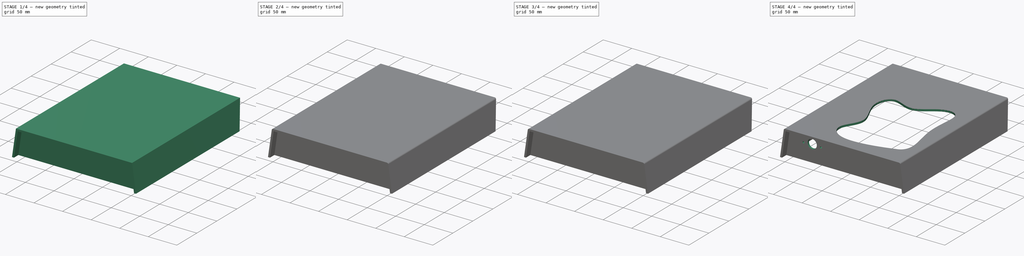
[diagram: build sequence overview — one tinted view per stage of 4, left to right]
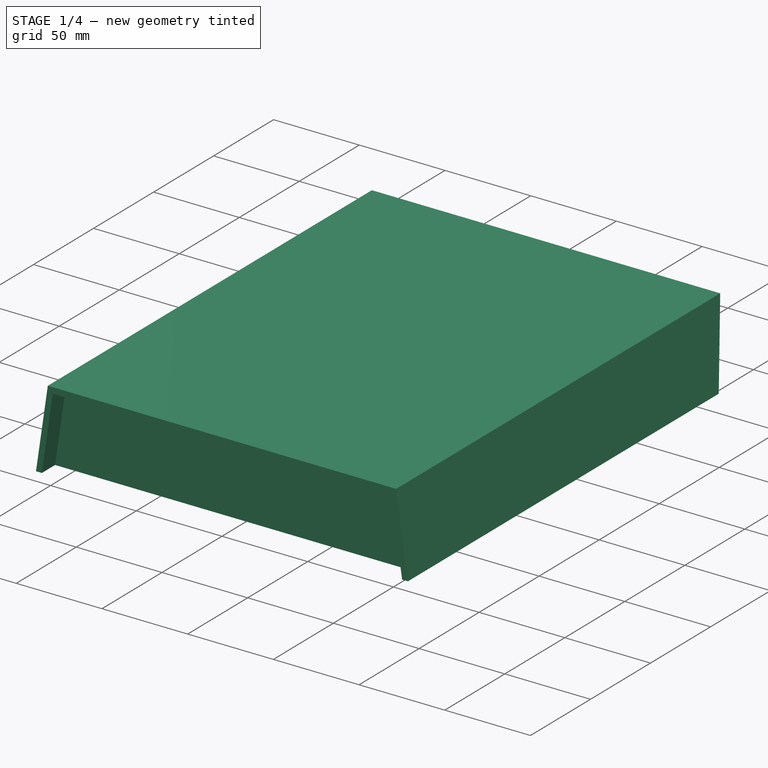
[diagram: stage 1 of 4 — iso view after this stage's code; geometry added in this stage tinted green]
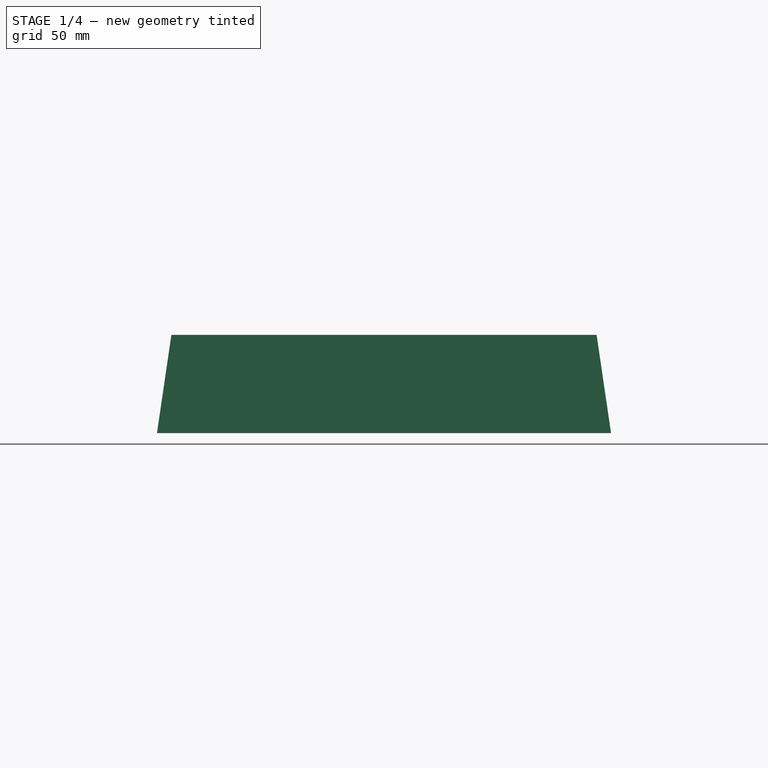
[diagram: stage 1 of 4 — front view after this stage's code; geometry added in this stage tinted green]
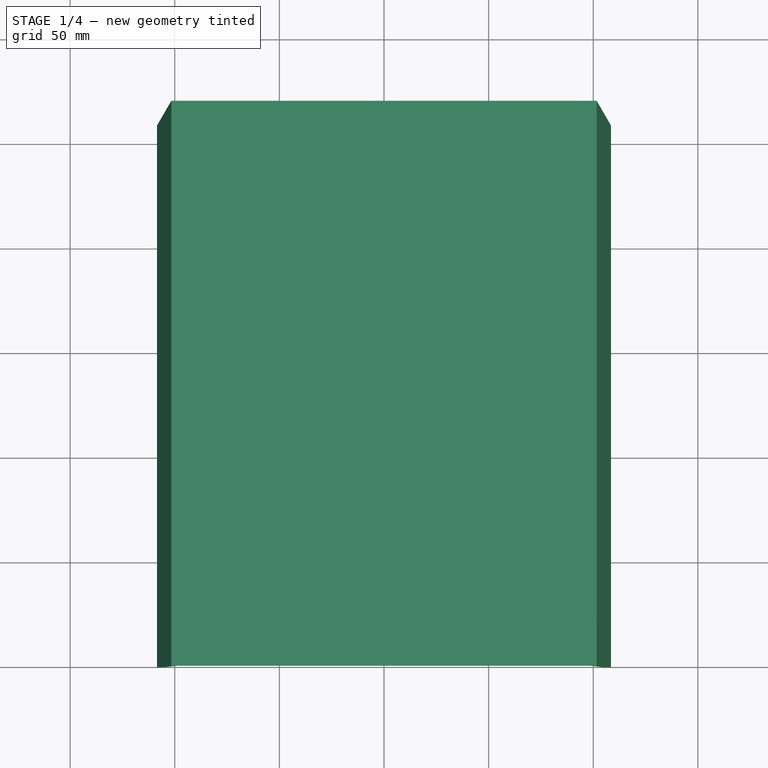
[diagram: stage 1 of 4 — top view after this stage's code; geometry added in this stage tinted green]
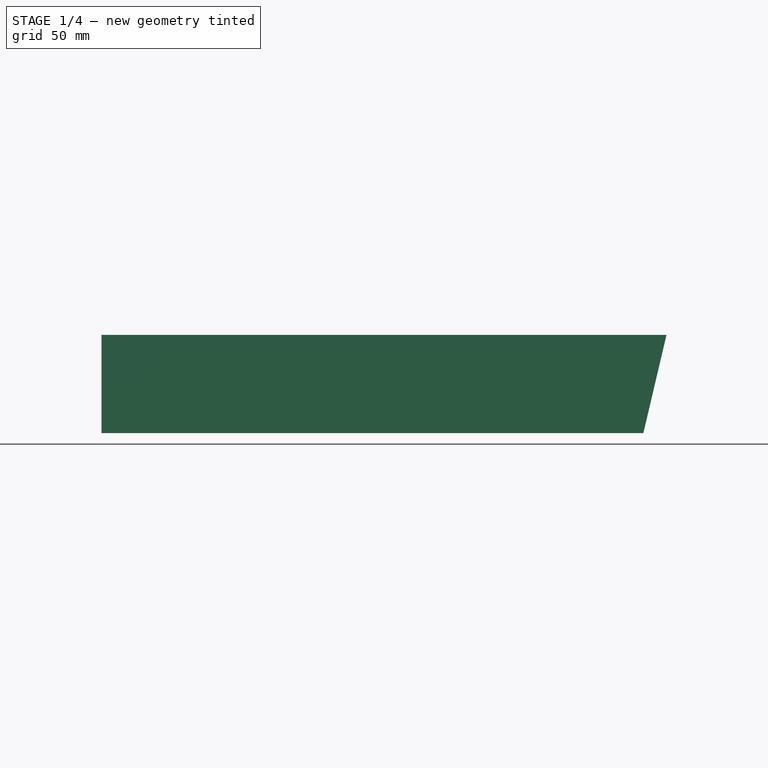
[diagram: stage 1 of 4 — right view after this stage's code; geometry added in this stage tinted green]
FCSTD DOCUMENT  (FreeCAD 0.17R13522 (Git))
Label: Keithley_17X_Instrument_Case_Top
License: All rights reserved
LicenseURL: http://en.wikipedia.org/wiki/All_rights_reserved
objects: Sketcher::SketchObject×10, PartDesign::Pocket×7, PartDesign::Pad×3, PartDesign::Mirrored×2, PartDesign::Plane×1, PartDesign::Fillet×1, PartDesign::LinearPattern×1, PartDesign::Body×1
note: 36 computed .brp shape members not serialized (recipe doc carries the construction recipe); baked Part::Feature solids carry a one-line shape summary decoded from their .brp

FEATURE [Sketcher::SketchObject] Sketch
  MapMode = 5
  Placement = pos=(0,0,0) rot=(1,0,0;1.5708rad)
  Support = -> [XZ_Plane]
  expr: Constraints[10] = 180 - 81.650000000000006
  sketch-geometry (4):
    g0: LineSegment StartX=-108.5 StartY=0 StartZ=0 EndX=108.5 EndY=0 EndZ=0
    g1: LineSegment StartX=108.5 StartY=0 StartZ=0 EndX=101.616 EndY=46.9 EndZ=0
    g2: LineSegment StartX=101.616 StartY=46.9 StartZ=0 EndX=-101.616 EndY=46.9 EndZ=0
    g3: LineSegment StartX=-108.5 StartY=0 StartZ=0 EndX=-101.616 EndY=46.9 EndZ=0
  constraints (12):
    c: PointOnObject(g0,g-1)
    c: Horizontal(g0)
    c: Coincident(g1,g0)
    c: Coincident(g2,g1)
    c: Horizontal(g2)
    c: Coincident(g3,g0)
    c: Coincident(g3,g2)
    c: Symmetric(g0,g0,g-2)
    c: Symmetric(g1,g2,g-2)
    c: DistanceY(g0,g2) = 46.9
    c: Angle(g3,g2) = 1.71653
    c: DistanceX(g0,g0) = 217
FEATURE [PartDesign::Pad] Pad
  Length = 270
  Length2 = 100
  Placement = pos=(0,0,0) rot=(1,0,0;1.5708rad)
  Profile = -> Sketch
  Refine = true
  Reversed = true
  Type = 0
FEATURE [Sketcher::SketchObject] Sketch001
  ExternalGeometry = -> [Pad]
  MapMode = 5
  Placement = pos=(0,0,0) rot=(0.57735,0.57735,0.57735;2.0944rad)
  Support = -> [YZ_Plane]
  sketch-geometry (3):
    g0: LineSegment StartX=270 StartY=46.9 StartZ=0 EndX=258.957 EndY=0 EndZ=0
    g1: LineSegment StartX=258.957 StartY=0 StartZ=0 EndX=270 EndY=0 EndZ=0
    g2: LineSegment StartX=270 StartY=0 StartZ=0 EndX=270 EndY=46.9 EndZ=0
  constraints (7):
    c: Coincident(g0,g-4)
    c: PointOnObject(g0,g-5)
    c: Coincident(g1,g0)
    c: Coincident(g1,g-5)
    c: Coincident(g2,g1)
    c: Coincident(g2,g0)
    c: Angle(g1,g0) = 1.33954
FEATURE [PartDesign::Pocket] Pocket
  BaseFeature = -> Pad
  Length = 5
  Length2 = 100
  Midplane = true
  Placement = pos=(0,0,0) rot=(1,0,0;1.5708rad)
  Profile = -> Sketch001
  Refine = true
  Type = 1
FEATURE [Sketcher::SketchObject] Sketch002
  ExternalGeometry = -> [Pocket]
  MapMode = 5
  Placement = pos=(0,0,0) rot=(1,0,0;1.5708rad)
  Support = -> [Pocket]
  sketch-geometry (7):
    g0: LineSegment StartX=-105.084 StartY=0 StartZ=0 EndX=-98.6961 EndY=43.52 EndZ=0
    g1: LineSegment StartX=-98.6961 StartY=43.52 StartZ=0 EndX=98.6961 EndY=43.52 EndZ=0
    g2: LineSegment StartX=98.6961 StartY=43.52 StartZ=0 EndX=105.084 EndY=0 EndZ=0
    g3: LineSegment [constr] StartX=101.561 StartY=24 StartZ=0 EndX=104.905 EndY=24.4908 EndZ=0
    g4: LineSegment [constr] StartX=-101.561 StartY=24 StartZ=0 EndX=-104.905 EndY=24.4908 EndZ=0
    g5: LineSegment [constr] StartX=-101.561 StartY=24 StartZ=0 EndX=101.561 EndY=24 EndZ=0
    g6: LineSegment StartX=-105.084 StartY=0 StartZ=0 EndX=105.084 EndY=0 EndZ=0
  constraints (22):
    c: PointOnObject(g0,g-1)
    c: Coincident(g1,g0)
    c: Horizontal(g1)
    c: Coincident(g2,g1)
    c: PointOnObject(g2,g-1)
    c: PointOnObject(g3,g2)
    c: PointOnObject(g3,g-5)
    c: PointOnObject(g4,g0)
    c: PointOnObject(g4,g-3)
    c: DistanceY(g1,g-5) = 3.38
    c: Perpendicular(g-5,g3)
    c: Perpendicular(g-3,g4)
    c: Distance(g3) = 3.38
    c: Equal(g3,g4)
    c: Parallel(g2,g-5)
    c: Parallel(g0,g-3)
    c: Coincident(g5,g4)
    c: Coincident(g5,g3)
    c: Horizontal(g5)
    c: DistanceY(g2,g3) = 24
    c: Coincident(g6,g0)
    c: Coincident(g6,g2)
FEATURE [PartDesign::Pocket] Pocket001
  BaseFeature = -> Pocket
  Length = 11
  Length2 = 100
  Placement = pos=(0,0,0) rot=(1,0,0;1.5708rad)
  Profile = -> Sketch002
  Refine = true
  Type = 0
FEATURE [PartDesign::Plane] DatumPlane
  AttachmentOffset = pos=(0,0,-280) rot=(0,0,1;0rad)
  MapMode = 5
  Placement = pos=(0,280,2.9e-11) rot=(1,0,0;1.5708rad)
  Support = -> [XZ_Plane]
FEATURE [Sketcher::SketchObject] Sketch003
  ExternalGeometry = -> [Pocket001]
  MapMode = 5
  Placement = pos=(0,280,2.9e-11) rot=(1,0,0;1.5708rad)
  Support = -> [DatumPlane]
  sketch-geometry (4):
    g0: LineSegment StartX=-105.084 StartY=0 StartZ=0 EndX=-98.6961 EndY=43.52 EndZ=0
    g1: LineSegment StartX=-98.6961 StartY=43.52 StartZ=0 EndX=98.6961 EndY=43.52 EndZ=0
    g2: LineSegment StartX=98.6961 StartY=43.52 StartZ=0 EndX=105.084 EndY=0 EndZ=0
    g3: LineSegment StartX=105.084 StartY=0 StartZ=0 EndX=-105.084 EndY=0 EndZ=0
  constraints (8):
    c: Coincident(g0,g-3)
    c: Coincident(g0,g-4)
    c: Coincident(g1,g0)
    c: Coincident(g1,g-5)
    c: Coincident(g2,g1)
    c: Coincident(g2,g-5)
    c: Coincident(g3,g2)
    c: Coincident(g3,g0)
FEATURE [PartDesign::Pocket] Pocket002
  BaseFeature = -> Pocket001
  Length = 0
  Length2 = 100
  Offset = -3.38
  Placement = pos=(0,0,0) rot=(1,0,0;1.5708rad)
  Profile = -> Sketch003
  Refine = true
  Reversed = true
  Type = 3
  UpToFace = -> Pocket001 [Face4]
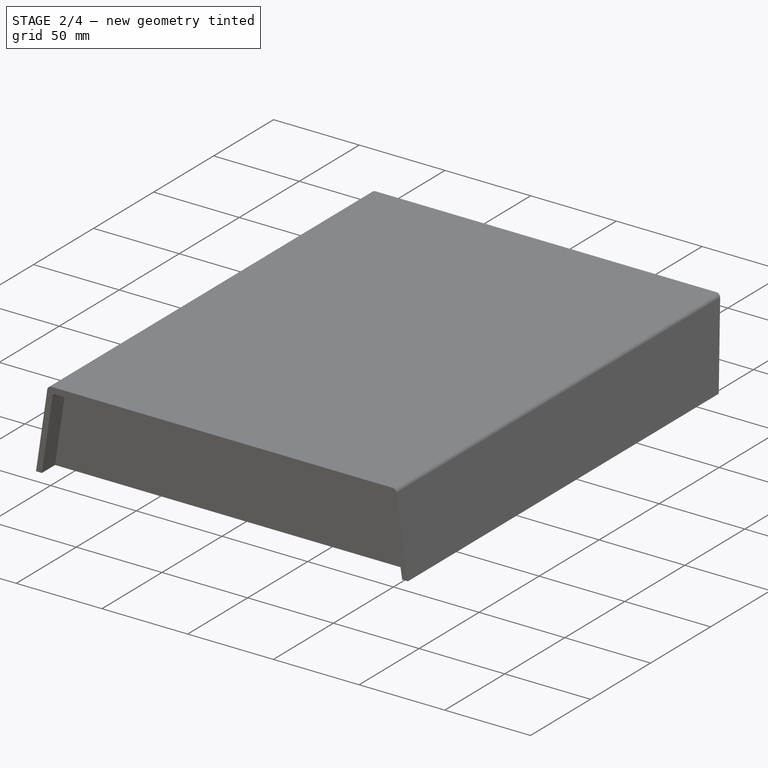
[diagram: stage 2 of 4 — iso view after this stage's code; geometry added in this stage tinted green]
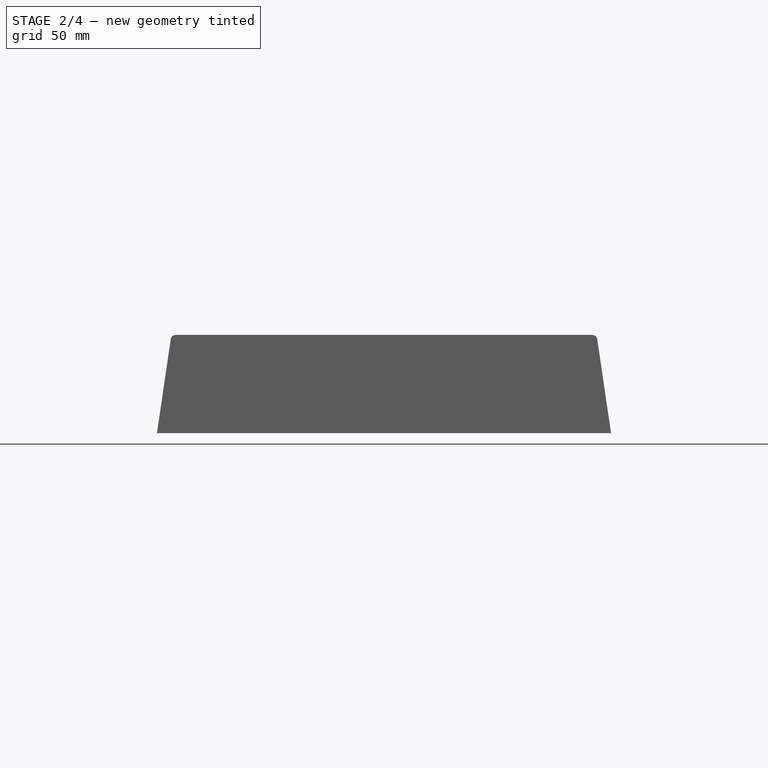
[diagram: stage 2 of 4 — front view after this stage's code; geometry added in this stage tinted green]
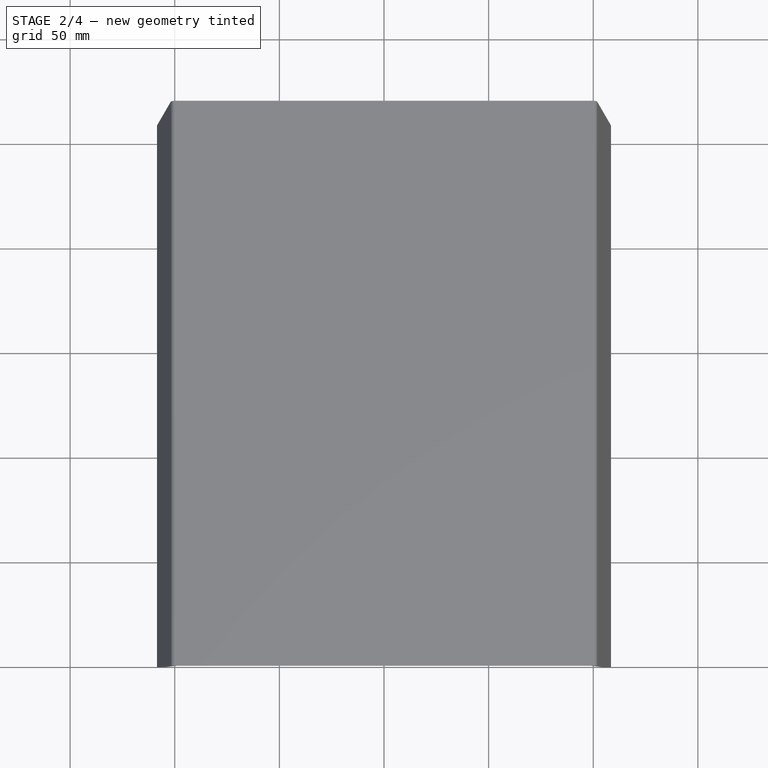
[diagram: stage 2 of 4 — top view after this stage's code; geometry added in this stage tinted green]
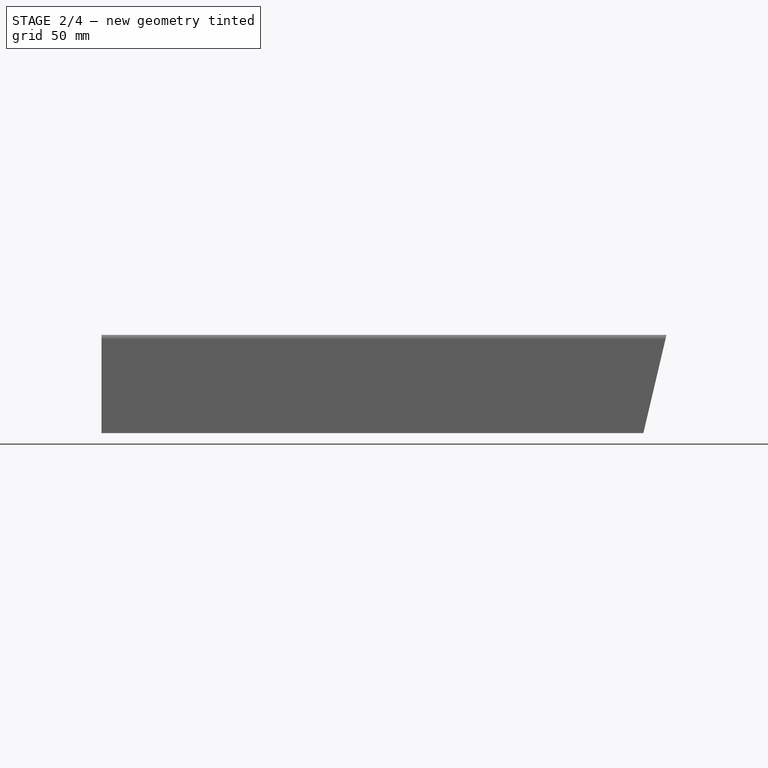
[diagram: stage 2 of 4 — right view after this stage's code; geometry added in this stage tinted green]
FEATURE [PartDesign::Fillet] Fillet
  Base = -> Pocket002 [Edge24,Edge36,Edge20,Edge23,Edge35,Edge32]
  BaseFeature = -> Pocket002
  Placement = pos=(0,0,0) rot=(1,0,0;1.5708rad)
  Radius = 2.38
FEATURE [Sketcher::SketchObject] Sketch004
  ExternalGeometry = -> [Fillet]
  MapMode = 5
  Placement = pos=(0,0,43.52) rot=(1,0,0;3.14159rad)
  Support = -> [Fillet]
  expr: Constraints[0] = 9.6999999999999993 / 2
  sketch-geometry (1):
    g0: Circle CenterX=89.9 CenterY=-82.88 CenterZ=0 NormalX=0 NormalY=0 NormalZ=1 AngleXU=0 Radius=4.85
  constraints (3):
    c: Radius(g0) = 4.85
    c: DistanceY(g0,g-3) = 68.5
    c: DistanceX(g0,g-4) = 18.6
FEATURE [PartDesign::Pad] Pad001
  BaseFeature = -> Fillet
  Length = 32
  Length2 = 100
  Placement = pos=(0,0,0) rot=(1,0,0;1.5708rad)
  Profile = -> Sketch004
  Refine = true
  Type = 0
FEATURE [PartDesign::Mirrored] Mirrored
  BaseFeature = -> Pad001
  MirrorPlane = -> YZ_Plane
  Originals = -> [Pad001]
  Placement = pos=(0,0,0) rot=(1,0,0;1.5708rad)
  Refine = true
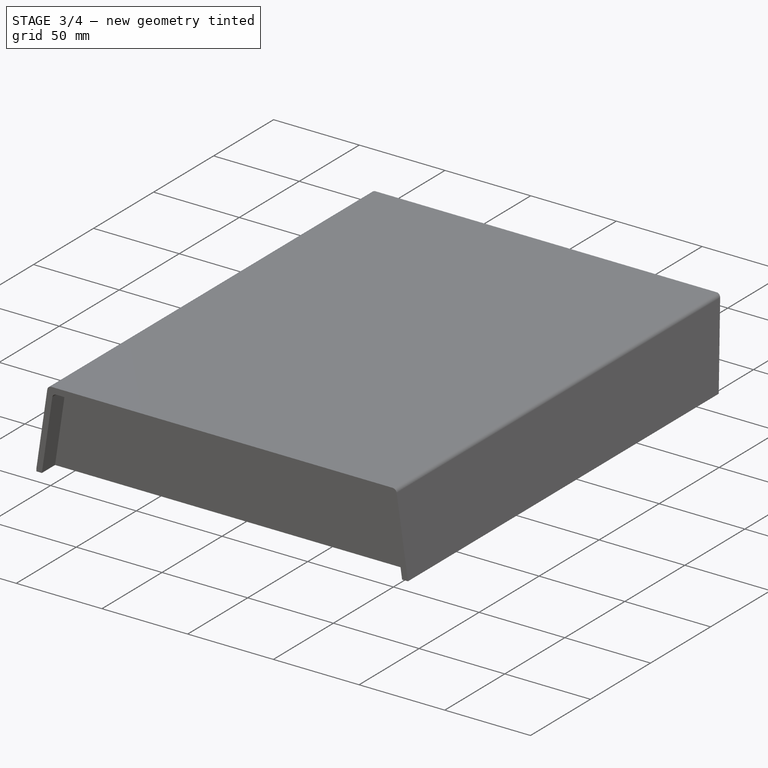
[diagram: stage 3 of 4 — iso view after this stage's code; geometry added in this stage tinted green]
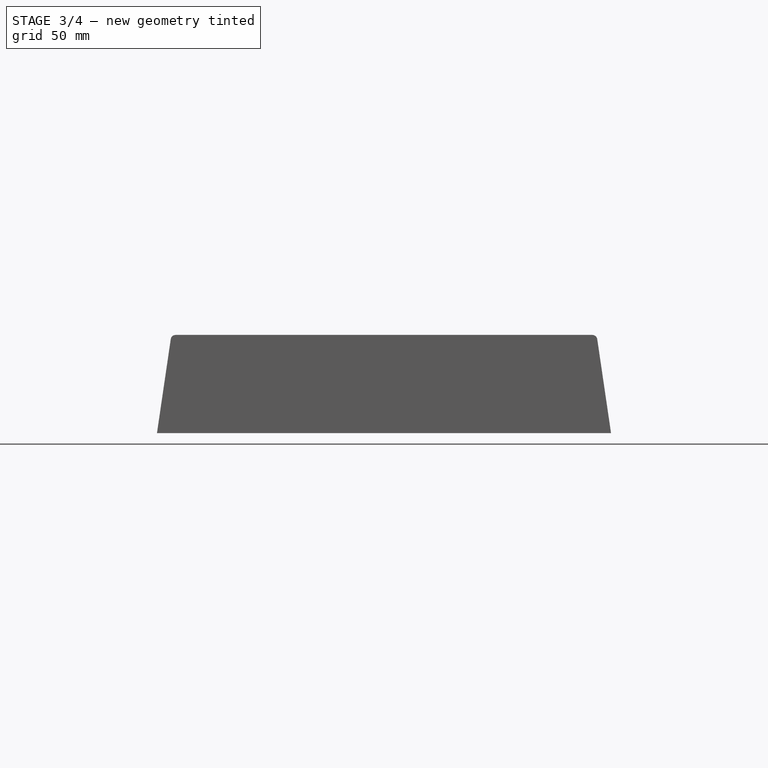
[diagram: stage 3 of 4 — front view after this stage's code; geometry added in this stage tinted green]
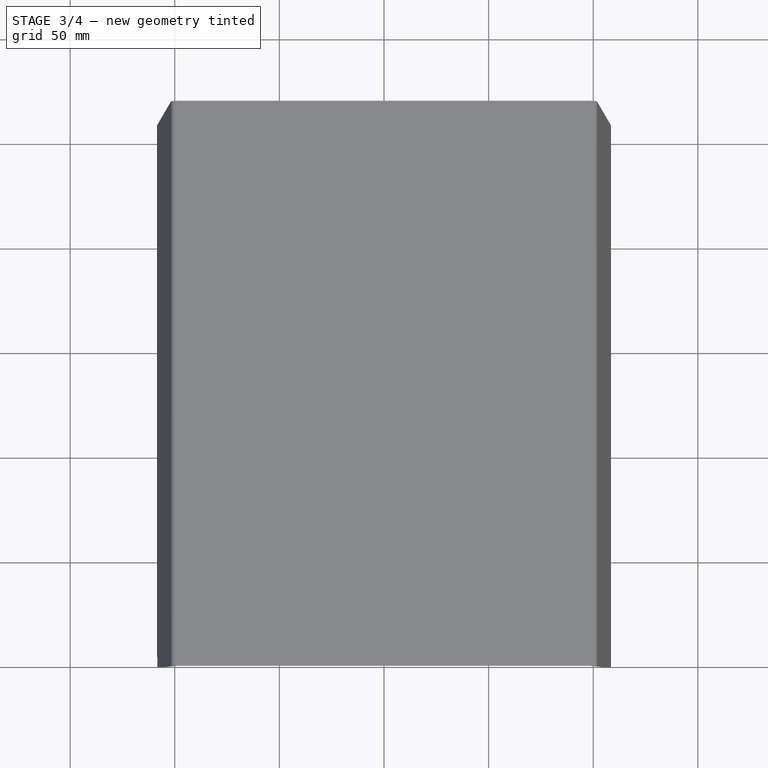
[diagram: stage 3 of 4 — top view after this stage's code; geometry added in this stage tinted green]
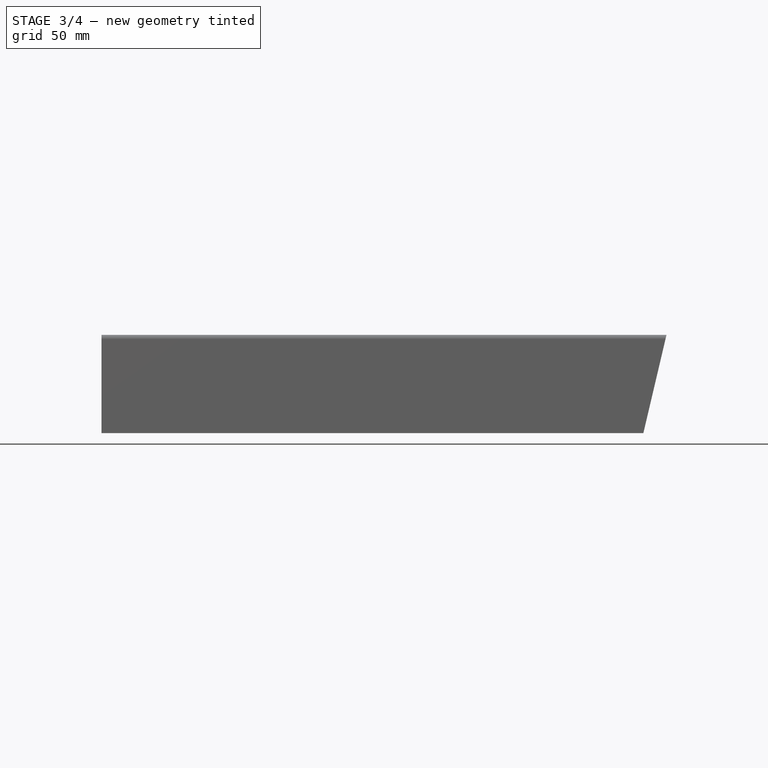
[diagram: stage 3 of 4 — right view after this stage's code; geometry added in this stage tinted green]
FEATURE [Sketcher::SketchObject] Sketch005
  ExternalGeometry = -> [Mirrored]
  MapMode = 5
  Placement = pos=(0,0,43.52) rot=(1,0,0;3.14159rad)
  Support = -> [Mirrored]
  sketch-geometry (2):
    g0: Circle CenterX=89.9 CenterY=-199.38 CenterZ=0 NormalX=0 NormalY=0 NormalZ=1 AngleXU=0 Radius=4.85
    g1: LineSegment [constr] StartX=89.9 StartY=-82.88 StartZ=0 EndX=89.9 EndY=-199.38 EndZ=0
  constraints (5):
    c: Coincident(g1,g-5)
    c: Coincident(g1,g0)
    c: Vertical(g1)
    c: Equal(g-5,g0)
    c: DistanceY(g1,g1) = 116.5
FEATURE [PartDesign::Pad] Pad002
  BaseFeature = -> Mirrored
  Length = 10
  Length2 = 100
  Placement = pos=(0,0,0) rot=(1,0,0;1.5708rad)
  Profile = -> Sketch005
  Refine = true
  Type = 3
  UpToFace = -> Mirrored [Face23]
FEATURE [PartDesign::Mirrored] Mirrored001
  BaseFeature = -> Pad002
  MirrorPlane = -> YZ_Plane
  Originals = -> [Pad002]
  Placement = pos=(0,0,0) rot=(1,0,0;1.5708rad)
  Refine = true
FEATURE [Sketcher::SketchObject] Sketch006
  ExternalGeometry = -> [Mirrored001]
  MapMode = 5
  Placement = pos=(0,0,0) rot=(1,0,0;1.5708rad)
  Support = -> [Mirrored001]
  sketch-geometry (4):
    g0: LineSegment StartX=-108.5 StartY=0 StartZ=0 EndX=-108.3 EndY=0 EndZ=0
    g1: LineSegment StartX=-108.3 StartY=0 StartZ=0 EndX=-108.3 EndY=2 EndZ=0
    g2: LineSegment StartX=-108.3 StartY=2 StartZ=0 EndX=-108.5 EndY=2 EndZ=0
    g3: LineSegment StartX=-108.5 StartY=2 StartZ=0 EndX=-108.5 EndY=0 EndZ=0
  constraints (12):
    c: Coincident(g0,g1)
    c: Coincident(g1,g2)
    c: Coincident(g2,g3)
    c: Coincident(g3,g0)
    c: Horizontal(g0)
    c: Horizontal(g2)
    c: Vertical(g1)
    c: Vertical(g3)
    c: PointOnObject(g0,g-1)
    c: Coincident(g0,g-3)
    c: DistanceX(g2,g2) = 0.2
    c: DistanceY(g3,g3) = 2
FEATURE [PartDesign::Pocket] Pocket003
  BaseFeature = -> Mirrored001
  Length = 5
  Length2 = 100
  Placement = pos=(0,0,0) rot=(1,0,0;1.5708rad)
  Profile = -> Sketch006
  Refine = true
  Type = 0
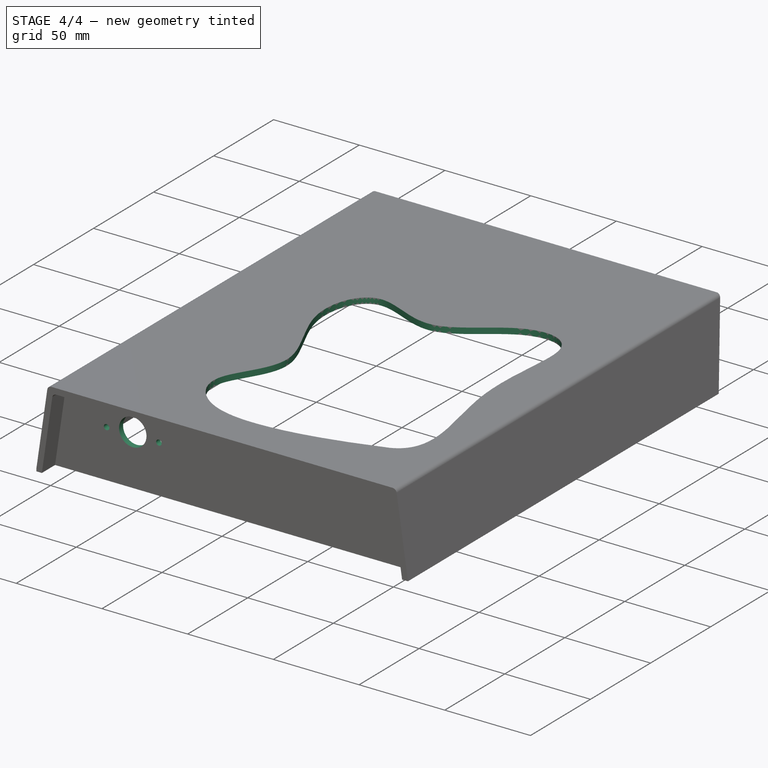
[diagram: stage 4 of 4 — iso view after this stage's code; geometry added in this stage tinted green]
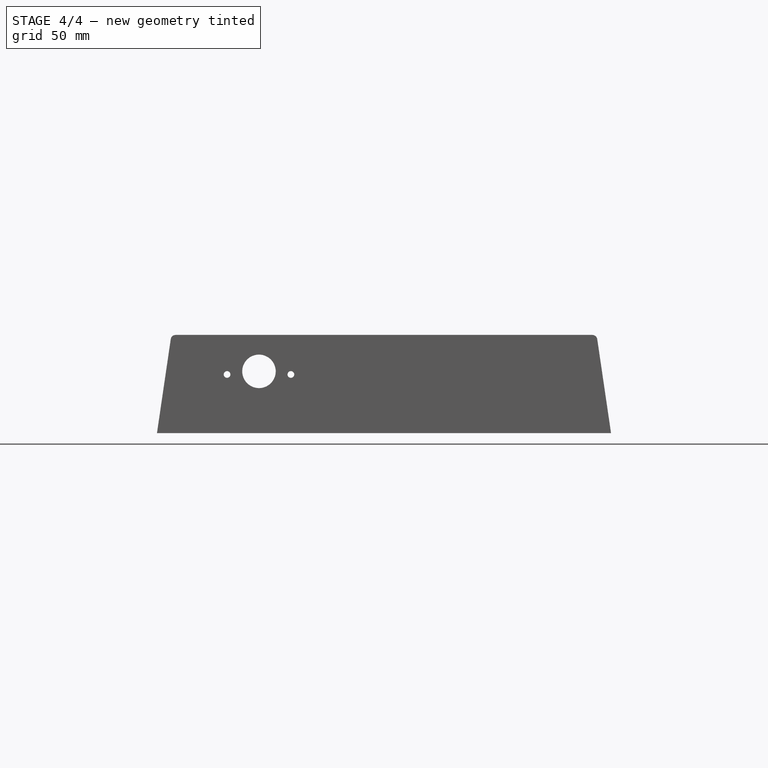
[diagram: stage 4 of 4 — front view after this stage's code; geometry added in this stage tinted green]
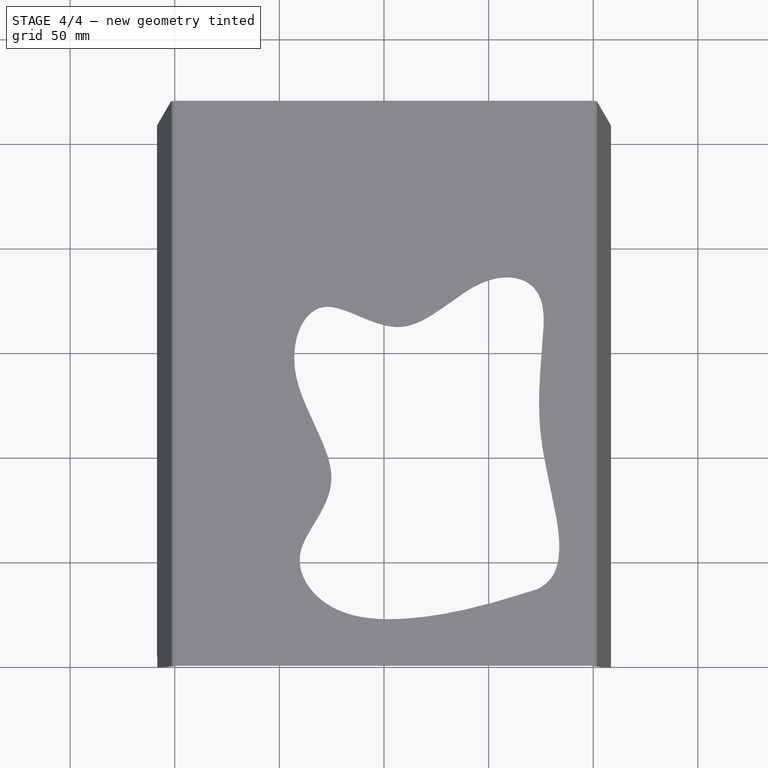
[diagram: stage 4 of 4 — top view after this stage's code; geometry added in this stage tinted green]
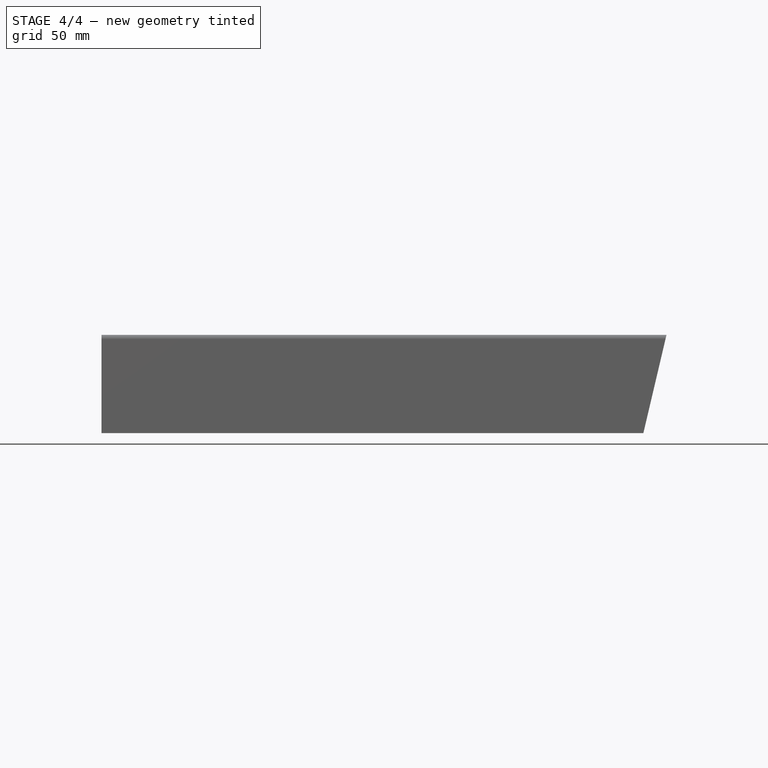
[diagram: stage 4 of 4 — right view after this stage's code; geometry added in this stage tinted green]
FEATURE [Sketcher::SketchObject] Sketch007
  MapMode = 5
  Placement = pos=(0,11,0) rot=(1,0,0;1.5708rad)
  Support = -> [Pocket003]
  expr: Constraints[0] = 3.2000000000000002 / 2
  sketch-geometry (1):
    g0: Circle CenterX=-75 CenterY=28 CenterZ=0 NormalX=0 NormalY=0 NormalZ=1 AngleXU=0 Radius=1.6
  constraints (3):
    c: Radius(g0) = 1.6
    c: DistanceX(g0,g-1) = 75
    c: DistanceY(g-1,g0) = 28
FEATURE [PartDesign::Pocket] Pocket004
  BaseFeature = -> Pocket003
  Length = 5
  Length2 = 100
  Placement = pos=(0,0,0) rot=(1,0,0;1.5708rad)
  Profile = -> Sketch007
  Refine = true
  Type = 1
FEATURE [PartDesign::LinearPattern] LinearPattern
  BaseFeature = -> Pocket004
  Direction = -> X_Axis
  Length = 30.5
  Occurrences = 2
  Originals = -> [Pocket004]
  Placement = pos=(0,0,0) rot=(1,0,0;1.5708rad)
  Refine = true
FEATURE [Sketcher::SketchObject] Sketch008
  ExternalGeometry = -> [LinearPattern]
  MapMode = 5
  Placement = pos=(0,11,0) rot=(1,0,0;1.5708rad)
  Support = -> [LinearPattern]
  expr: Constraints[2] = 16mm / 2
  sketch-geometry (12):
    g0: LineSegment [constr] StartX=-75 StartY=28 StartZ=0 EndX=-44.5 EndY=28 EndZ=0
    g1: Circle CenterX=-59.75 CenterY=29.495 CenterZ=0 NormalX=0 NormalY=0 NormalZ=1 AngleXU=0 Radius=8
    g2: LineSegment [constr] StartX=-75 StartY=28 StartZ=0 EndX=-75 EndY=23.635 EndZ=0
    g3: LineSegment [constr] StartX=-75 StartY=23.635 StartZ=0 EndX=-44.5 EndY=23.635 EndZ=0
    g4: LineSegment [constr] StartX=-44.5 StartY=23.635 StartZ=0 EndX=-44.5 EndY=28 EndZ=0
    g5: LineSegment [constr] StartX=-65.77 StartY=34.645 StartZ=0 EndX=-53.73 EndY=34.645 EndZ=0
    g6: LineSegment [constr] StartX=-53.73 StartY=34.645 StartZ=0 EndX=-53.73 EndY=23.635 EndZ=0
    g7: LineSegment [constr] StartX=-53.73 StartY=23.635 StartZ=0 EndX=-65.77 EndY=23.635 EndZ=0
    g8: LineSegment [constr] StartX=-65.77 StartY=23.635 StartZ=0 EndX=-65.77 EndY=34.645 EndZ=0
    g9: LineSegment [constr] StartX=-53.73 StartY=24.345 StartZ=0 EndX=-65.77 EndY=24.345 EndZ=0
    g10: LineSegment [constr] StartX=-59.75 StartY=23.635 StartZ=0 EndX=-59.75 EndY=34.645 EndZ=0
    g11: GeomPoint X=-59.75 Y=24.345 Z=0
  constraints (34):
    c: Coincident(g0,g-3)
    c: Coincident(g0,g-4)
    c: Radius(g1) = 8
    c: Coincident(g2,g0)
    c: Coincident(g3,g2)
    c: Horizontal(g3)
    c: Coincident(g4,g3)
    c: Coincident(g4,g0)
    c: Vertical(g4)
    c: Vertical(g2)
    c: DistanceY(g4,g4) = 4.365
    c: Coincident(g5,g6)
    c: Coincident(g6,g7)
    c: Coincident(g7,g8)
    c: Coincident(g8,g5)
    c: Horizontal(g5)
    c: Horizontal(g7)
    c: Vertical(g6)
    c: Vertical(g8)
    c: PointOnObject(g6,g3)
    c: DistanceX(g5,g5) = 12.04
    c: DistanceY(g6,g6) = 11.01
    c: PointOnObject(g9,g6)
    c: PointOnObject(g9,g8)
    c: Horizontal(g9)
    c: DistanceY(g9,g5) = 10.3
    c: PointOnObject(g10,g3)
    c: PointOnObject(g10,g5)
    c: Symmetric(g0,g0,g10)
    c: Symmetric(g5,g5,g10)
    c: PointOnObject(g1,g10)
    c: PointOnObject(g11,g9)
    c: PointOnObject(g11,g10)
    c: Symmetric(g10,g11,g1)
FEATURE [PartDesign::Pocket] Pocket005
  BaseFeature = -> LinearPattern
  Length = 5
  Length2 = 100
  Placement = pos=(0,0,0) rot=(1,0,0;1.5708rad)
  Profile = -> Sketch008
  Refine = true
  Type = 1
FEATURE [Sketcher::SketchObject] Sketch009
  MapMode = 5
  Placement = pos=(0,0,46.9) rot=(0,0,1;3.14159rad)
  Support = -> [Pocket005]
  sketch-geometry (27):
    g0-g13: Circle [constr] x14 (B-spline internal-alignment scaffolding for g14; pole/knot coordinates omitted)
    g14: BSplineCurve PolesCount=14 KnotsCount=12 Degree=3 IsPeriodic=0
    g15-g26: GeomPoint [constr] x12 (B-spline internal-alignment scaffolding for g14; pole/knot coordinates omitted)
  constraints (5):
    c: Radius(g0) = 7
    c: Equal(g0, g1-g13) x13
    c: InternalAlignment(g0-g13 -> g14) x14
    c: InternalAlignment(g15-g26 -> g14) x12
    c: Coincident(g0,g13)
FEATURE [PartDesign::Pocket] Pocket006  label="Viewing_Window"
  BaseFeature = -> Pocket005
  Length = 5
  Length2 = 100
  Placement = pos=(0,0,0) rot=(1,0,0;1.5708rad)
  Profile = -> Sketch009
  Refine = true
  Type = 1
FEATURE [PartDesign::Body] Body  label="Keithley_Case_Top"
  Group = -> [Sketch,Pad,Sketch001,Pocket,Sketch002,Pocket001,DatumPlane,Sketch003,Pocket002,Fillet,Sketch004,Pad001,Mirrored,Sketch005,Pad002,Mirrored001,Sketch006,Pocket003,Sketch007,Pocket004,LinearPattern,Sketch008,Pocket005,Sketch009,Pocket006]
  Origin = -> Origin
  Tip = -> Pocket006
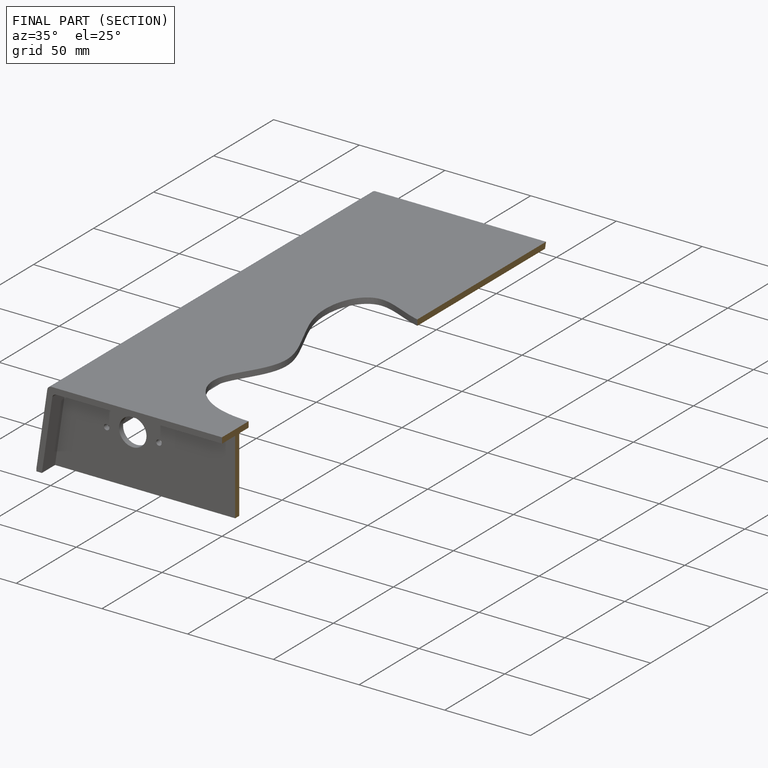
[diagram: finished part — half-section view (interior)]
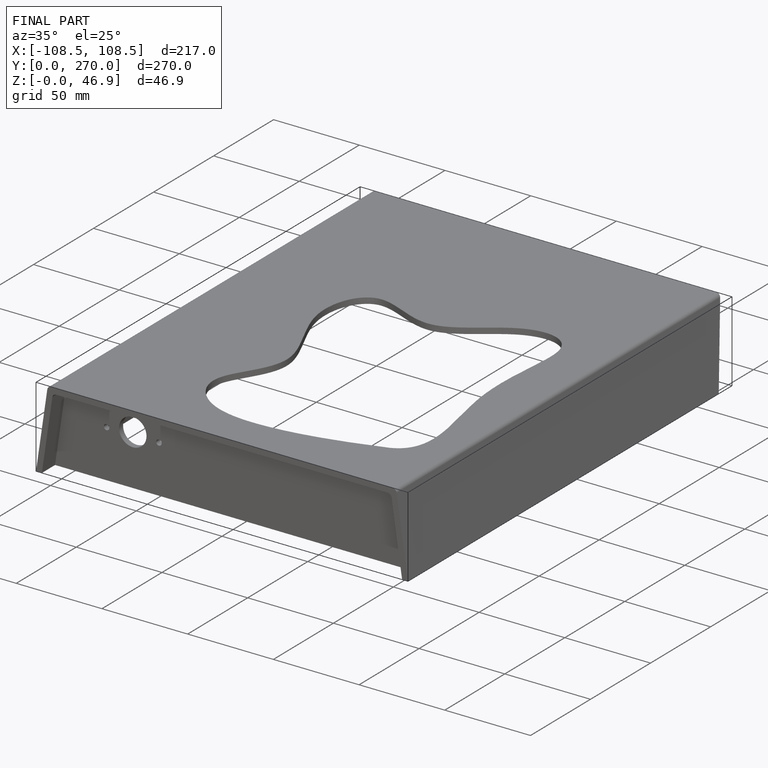
[diagram: finished part — iso view with bounding-box wireframe]
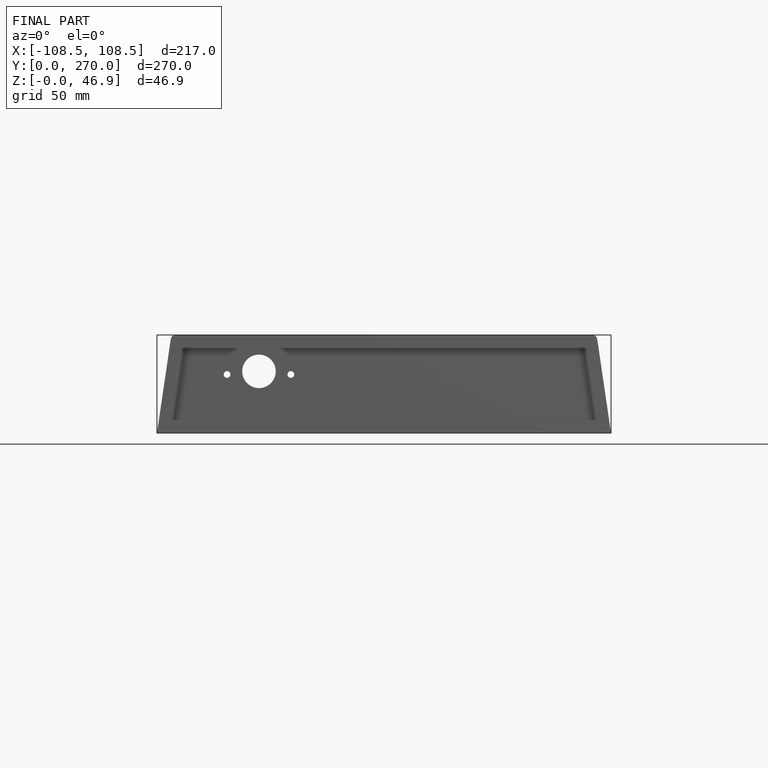
[diagram: finished part — front view with bounding-box wireframe]
